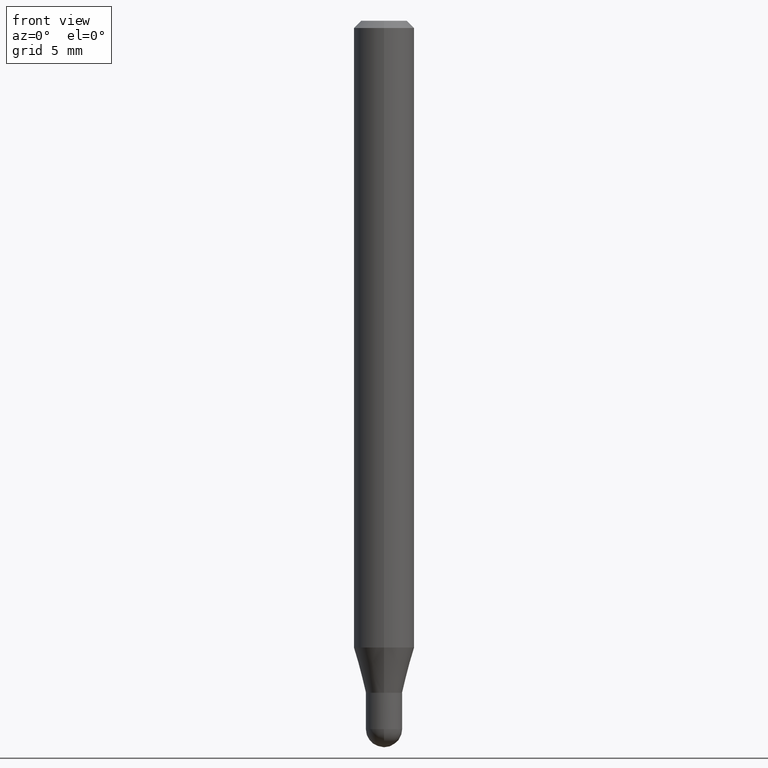
[diagram: clean part render]
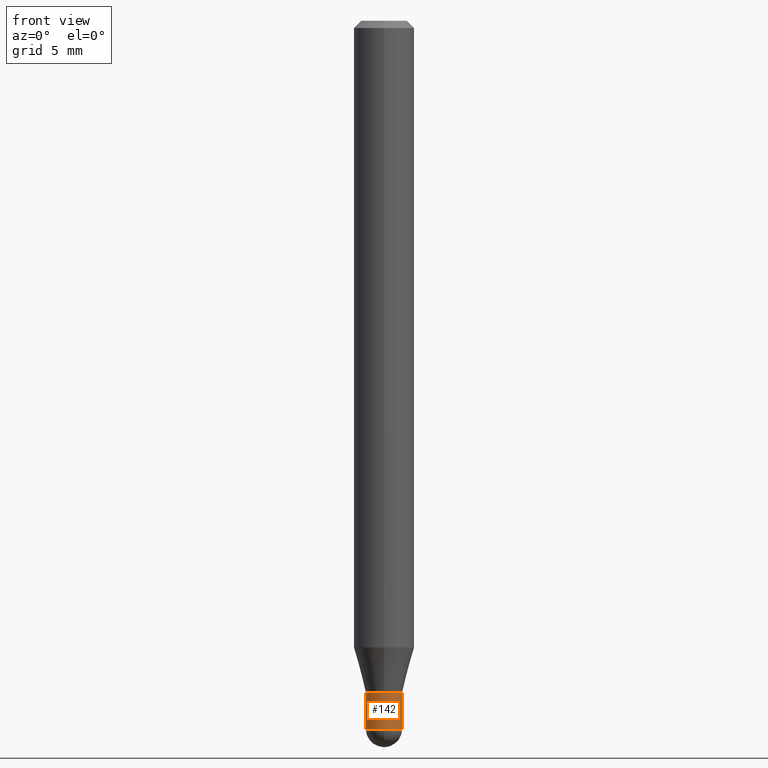
[diagram: same view with one face highlighted and labeled with its STEP entity id]
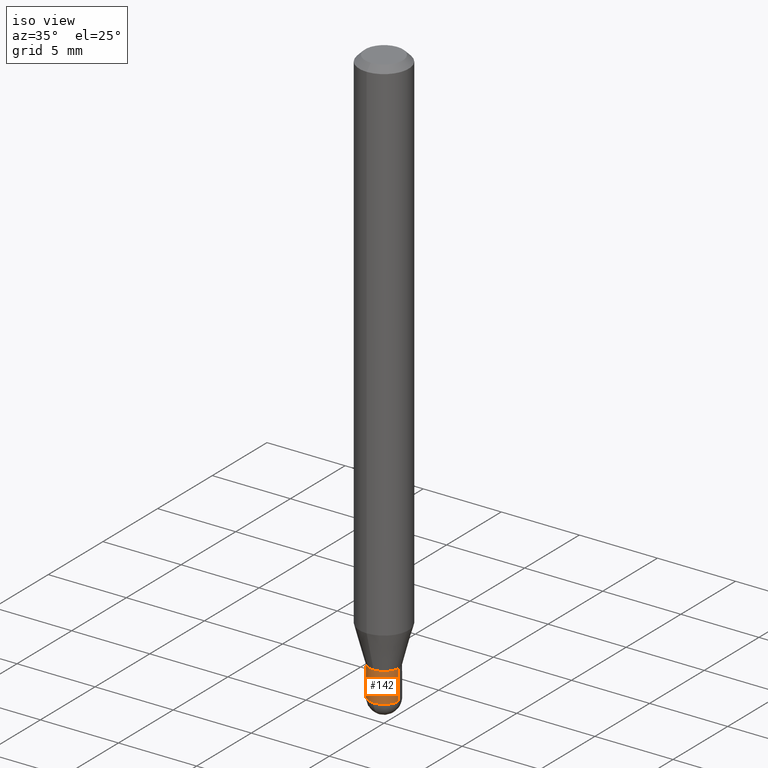
[diagram: same view with one face highlighted and labeled with its STEP entity id]
A machine part, front view. The second image highlights one B-rep face of the part: STEP entity #142.
A second angle (iso view) of the same face is appended — the face is thin or edge-on in the first view.
In plain terms, the highlighted cylindrical surface (edge-blend (fillet) strip) has radius 0.9525 mm, axis along (-0, 0, 1).
Its self-contained STEP definition (entity closure, byte-faithful):
#2 = VERTEX_POINT ( 'NONE', #26 ) ;
#10 = DIRECTION ( 'NONE',  ( -2.445468806185136877E-29, 3.491481338843145188E-15, 1.000000000000000000 ) ) ;
#17 = EDGE_CURVE ( 'NONE', #122, #365, #19, .T. ) ;
#19 = LINE ( 'NONE', #379, #319 ) ;
#26 = CARTESIAN_POINT ( 'NONE',  ( -2.618611004131998480E-16, -0.03750000000000520278, -1.462500000000000133 ) ) ;
#46 = CARTESIAN_POINT ( 'NONE',  ( 0.03749999999999999861, -2.618611004132350016E-16, 1.828566290923475922E-30 ) ) ;
#73 = EDGE_CURVE ( 'NONE', #122, #2, #364, .T. ) ;
#87 = LINE ( 'NONE', #46, #392 ) ;
#90 = DIRECTION ( 'NONE',  ( -2.445468806185136597E-29, 3.491481338843145583E-15, 1.000000000000000000 ) ) ;
#91 = DIRECTION ( 'NONE',  ( 1.000000000000000000, -6.982962677686268288E-15, 0.000000000000000000 ) ) ;
#99 = CARTESIAN_POINT ( 'NONE',  ( 3.393087968581877252E-29, -4.844430357644865674E-15, -1.387500000000000178 ) ) ;
#100 = DIRECTION ( 'NONE',  ( -2.445468806185136597E-29, 3.491481338843145583E-15, 1.000000000000000000 ) ) ;
#107 = ORIENTED_EDGE ( 'NONE', *, *, #500, .F. ) ;
#122 = VERTEX_POINT ( 'NONE', #420 ) ;
#129 = DIRECTION ( 'NONE',  ( 1.000000000000000000, -6.982962677686268288E-15, 0.000000000000000000 ) ) ;
#133 = FACE_OUTER_BOUND ( 'NONE', #482, .T. ) ;
#135 = CARTESIAN_POINT ( 'NONE',  ( 3.576498129045762161E-29, -5.106291458058100676E-15, -1.462500000000000133 ) ) ;
#142 = ADVANCED_FACE ( 'NONE', ( #133 ), #503, .T. ) ;
#182 = AXIS2_PLACEMENT_3D ( 'NONE', #289, #376, #91 ) ;
#196 = CARTESIAN_POINT ( 'NONE',  ( 0.03749999999999999861, -5.106291458058100676E-15, -1.387500000000000178 ) ) ;
#209 = AXIS2_PLACEMENT_3D ( 'NONE', #450, #90, #249 ) ;
#246 = CARTESIAN_POINT ( 'NONE',  ( -0.03749999999999999861, -4.708907381941446552E-15, -1.387500000000000178 ) ) ;
#249 = DIRECTION ( 'NONE',  ( 1.000000000000000000, -6.982962677686266711E-15, 4.876176775795935793E-29 ) ) ;
#257 = ORIENTED_EDGE ( 'NONE', *, *, #382, .T. ) ;
#270 = VERTEX_POINT ( 'NONE', #471 ) ;
#283 = AXIS2_PLACEMENT_3D ( 'NONE', #99, #451, #129 ) ;
#287 = DIRECTION ( 'NONE',  ( -2.445468806185136877E-29, 3.491481338843145188E-15, 1.000000000000000000 ) ) ;
#289 = CARTESIAN_POINT ( 'NONE',  ( 3.576498129045762161E-29, -5.106291458058100676E-15, -1.462500000000000133 ) ) ;
#292 = DIRECTION ( 'NONE',  ( 1.000000000000000000, -6.982962677686268288E-15, 0.000000000000000000 ) ) ;
#300 = CIRCLE ( 'NONE', #283, 0.03749999999999999861 ) ;
#319 = VECTOR ( 'NONE', #287, 39.37007874015748143 ) ;
#337 = CIRCLE ( 'NONE', #182, 0.03749999999999999861 ) ;
#364 = CIRCLE ( 'NONE', #427, 0.03749999999999999861 ) ;
#365 = VERTEX_POINT ( 'NONE', #246 ) ;
#376 = DIRECTION ( 'NONE',  ( -2.445468806185136597E-29, 3.491481338843145583E-15, 1.000000000000000000 ) ) ;
#377 = ORIENTED_EDGE ( 'NONE', *, *, #73, .T. ) ;
#379 = CARTESIAN_POINT ( 'NONE',  ( -0.03749999999999999861, 2.664535259100375598E-16, -1.844600658845589808E-30 ) ) ;
#382 = EDGE_CURVE ( 'NONE', #270, #414, #87, .T. ) ;
#392 = VECTOR ( 'NONE', #10, 39.37007874015748143 ) ;
#409 = ORIENTED_EDGE ( 'NONE', *, *, #504, .T. ) ;
#414 = VERTEX_POINT ( 'NONE', #196 ) ;
#420 = CARTESIAN_POINT ( 'NONE',  ( -0.03749999999999999861, -4.708907381941446552E-15, -1.462500000000000133 ) ) ;
#427 = AXIS2_PLACEMENT_3D ( 'NONE', #135, #100, #292 ) ;
#442 = ORIENTED_EDGE ( 'NONE', *, *, #17, .F. ) ;
#450 = CARTESIAN_POINT ( 'NONE',  ( 0.000000000000000000, 0.000000000000000000, 0.000000000000000000 ) ) ;
#451 = DIRECTION ( 'NONE',  ( -2.445468806185136597E-29, 3.491481338843145583E-15, 1.000000000000000000 ) ) ;
#471 = CARTESIAN_POINT ( 'NONE',  ( 0.03749999999999999861, -5.237222008264718177E-15, -1.462500000000000133 ) ) ;
#482 = EDGE_LOOP ( 'NONE', ( #442, #377, #409, #257, #107 ) ) ;
#500 = EDGE_CURVE ( 'NONE', #365, #414, #300, .T. ) ;
#503 = CYLINDRICAL_SURFACE ( 'NONE', #209, 0.03749999999999999861 ) ;
#504 = EDGE_CURVE ( 'NONE', #2, #270, #337, .T. ) ;